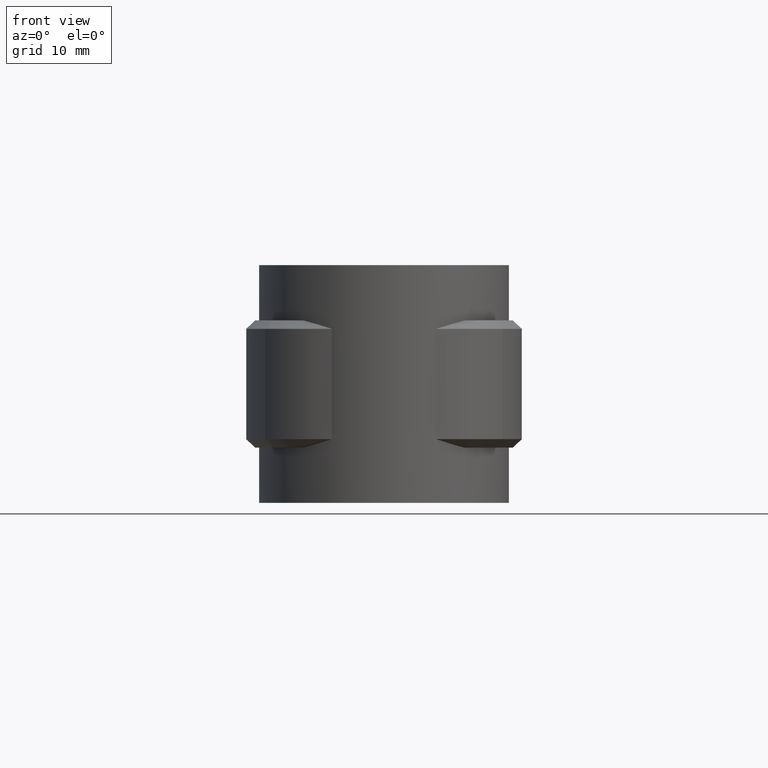
[diagram: clean part render]
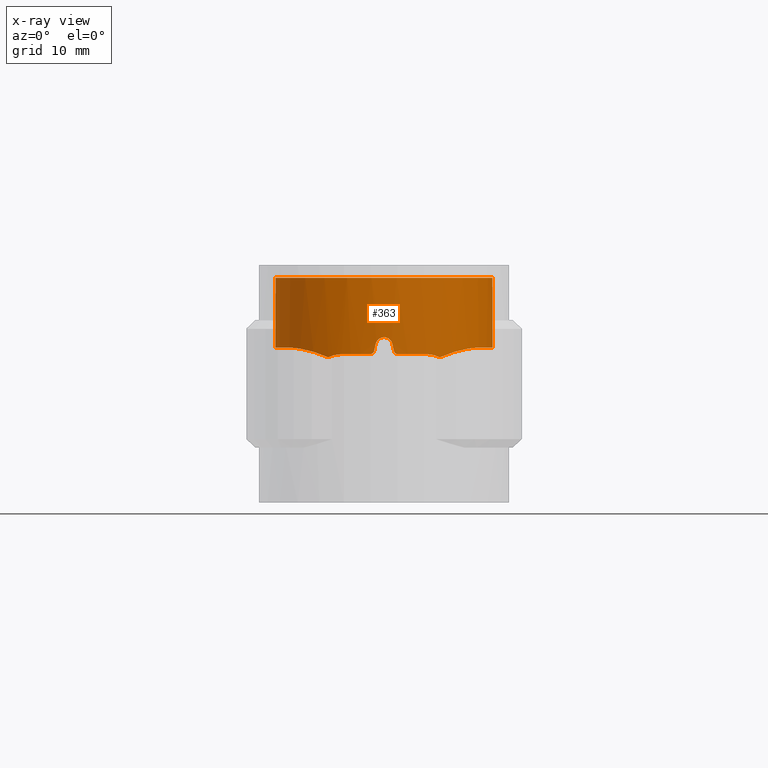
[diagram: x-ray — body ghosted, one internal face saturated and labeled with its STEP entity id]
A machine part, front view, then the same camera in x-ray: the body is ghosted and one INTERNAL B-rep face — a face not visible from any outside direction — is saturated and labeled: STEP entity #363.
In plain terms, the highlighted cylindrical surface (partial cylindrical patch) has radius 12.8 mm, axis along (0, 0, 1).
Its self-contained STEP definition (entity closure, byte-faithful):
#363 = ADVANCED_FACE( '', ( #702 ), #703, .T. );
#702 = FACE_OUTER_BOUND( '', #1430, .T. );
#703 = CYLINDRICAL_SURFACE( '', #1431, 12.8000000000000 );
#1430 = EDGE_LOOP( '', ( #2806, #2807, #2808, #2809, #2810, #2811, #2812, #2813, #2814, #2815, #2816, #2817, #2818, #2819, #2820, #2821 ) );
#1431 = AXIS2_PLACEMENT_3D( '', #2822, #2823, #2824 );
#2806 = ORIENTED_EDGE( '', *, *, #6512, .F. );
#2807 = ORIENTED_EDGE( '', *, *, #6513, .F. );
#2808 = ORIENTED_EDGE( '', *, *, #6514, .F. );
#2809 = ORIENTED_EDGE( '', *, *, #6515, .F. );
#2810 = ORIENTED_EDGE( '', *, *, #6516, .F. );
#2811 = ORIENTED_EDGE( '', *, *, #6517, .T. );
#2812 = ORIENTED_EDGE( '', *, *, #6518, .F. );
#2813 = ORIENTED_EDGE( '', *, *, #6519, .F. );
#2814 = ORIENTED_EDGE( '', *, *, #6520, .F. );
#2815 = ORIENTED_EDGE( '', *, *, #6521, .F. );
#2816 = ORIENTED_EDGE( '', *, *, #6522, .F. );
#2817 = ORIENTED_EDGE( '', *, *, #6523, .F. );
#2818 = ORIENTED_EDGE( '', *, *, #6524, .F. );
#2819 = ORIENTED_EDGE( '', *, *, #6525, .F. );
#2820 = ORIENTED_EDGE( '', *, *, #6526, .F. );
#2821 = ORIENTED_EDGE( '', *, *, #6527, .F. );
#2822 = CARTESIAN_POINT( '', ( 0.000000000000000, 0.000000000000000, 0.000000000000000 ) );
#2823 = DIRECTION( '', ( 0.000000000000000, 0.000000000000000, 1.00000000000000 ) );
#2824 = DIRECTION( '', ( 1.00000000000000, -6.12303176911189E-017, 0.000000000000000 ) );
#6512 = EDGE_CURVE( '', #7422, #7423, #7424, .T. );
#6513 = EDGE_CURVE( '', #7425, #7422, #7426, .T. );
#6514 = EDGE_CURVE( '', #7427, #7425, #7428, .T. );
#6515 = EDGE_CURVE( '', #7429, #7427, #7430, .T. );
#6516 = EDGE_CURVE( '', #7431, #7429, #7432, .F. );
#6517 = EDGE_CURVE( '', #7431, #7433, #7434, .T. );
#6518 = EDGE_CURVE( '', #7435, #7433, #7436, .T. );
#6519 = EDGE_CURVE( '', #7437, #7435, #7438, .T. );
#6520 = EDGE_CURVE( '', #7439, #7437, #7440, .T. );
#6521 = EDGE_CURVE( '', #7441, #7439, #7442, .T. );
#6522 = EDGE_CURVE( '', #7443, #7441, #7444, .T. );
#6523 = EDGE_CURVE( '', #7445, #7443, #7446, .T. );
#6524 = EDGE_CURVE( '', #7447, #7445, #7448, .T. );
#6525 = EDGE_CURVE( '', #7449, #7447, #7450, .T. );
#6526 = EDGE_CURVE( '', #7451, #7449, #7452, .T. );
#6527 = EDGE_CURVE( '', #7423, #7451, #7453, .T. );
#7422 = VERTEX_POINT( '', #8934 );
#7423 = VERTEX_POINT( '', #8935 );
#7424 = B_SPLINE_CURVE_WITH_KNOTS( '', 3, ( #8936, #8937, #8938, #8939, #8940, #8941 ), .UNSPECIFIED., .F., .F., ( 4, 2, 4 ), ( 0.0100804523547221, 0.0109760538606046, 0.0118716553664871 ), .UNSPECIFIED. );
#7425 = VERTEX_POINT( '', #8942 );
#7426 = B_SPLINE_CURVE_WITH_KNOTS( '', 3, ( #8943, #8944, #8945, #8946, #8947, #8948, #8949, #8950, #8951, #8952 ), .UNSPECIFIED., .F., .F., ( 4, 2, 2, 2, 4 ), ( 5.73424926034201E-005, 0.00341288935545768, 0.00425177607117124, 0.00509066278688481, 0.00676843621831193 ), .UNSPECIFIED. );
#7427 = VERTEX_POINT( '', #8953 );
#7428 = B_SPLINE_CURVE_WITH_KNOTS( '', 3, ( #8954, #8955, #8956, #8957, #8958, #8959, #8960, #8961, #8962, #8963, #8964, #8965, #8966, #8967, #8968, #8969, #8970, #8971, #8972, #8973, #8974, #8975, #8976, #8977, #8978, #8979 ), .UNSPECIFIED., .F., .F., ( 4, 2, 2, 2, 2, 2, 2, 2, 2, 2, 2, 2, 4 ), ( 0.000000000000000, 0.00257097322611428, 0.00385645983917143, 0.00514194645222857, 0.00771291967834285, 0.00899840629139999, 0.0102838929044571, 0.0115693795175143, 0.0128548661305714, 0.0154258393566857, 0.0167113259697428, 0.0179968125828000, 0.0205677858089142 ), .UNSPECIFIED. );
#7429 = VERTEX_POINT( '', #8980 );
#7430 = LINE( '', #8981, #8982 );
#7431 = VERTEX_POINT( '', #8983 );
#7432 = CIRCLE( '', #8984, 12.8000000000000 );
#7433 = VERTEX_POINT( '', #8985 );
#7434 = LINE( '', #8986, #8987 );
#7435 = VERTEX_POINT( '', #8988 );
#7436 = B_SPLINE_CURVE_WITH_KNOTS( '', 3, ( #8989, #8990, #8991, #8992, #8993, #8994, #8995, #8996, #8997, #8998, #8999, #9000, #9001, #9002, #9003, #9004, #9005, #9006, #9007, #9008, #9009, #9010 ), .UNSPECIFIED., .F., .F., ( 4, 2, 2, 2, 2, 2, 2, 2, 2, 2, 4 ), ( 0.000127068965293359, 0.00269803150548542, 0.00526899404567747, 0.00783995658586953, 0.00912543785596556, 0.0104109191260616, 0.0116964003961576, 0.0129818816662536, 0.0155528442064457, 0.0181238067466378, 0.0206947692868298 ), .UNSPECIFIED. );
#7437 = VERTEX_POINT( '', #9011 );
#7438 = B_SPLINE_CURVE_WITH_KNOTS( '', 3, ( #9012, #9013, #9014, #9015, #9016, #9017, #9018, #9019, #9020, #9021 ), .UNSPECIFIED., .F., .F., ( 4, 2, 2, 2, 4 ), ( 0.0162190576681450, 0.0178888287702064, 0.0195585998722677, 0.0212283709743291, 0.0228981420763905 ), .UNSPECIFIED. );
#7439 = VERTEX_POINT( '', #9022 );
#7440 = B_SPLINE_CURVE_WITH_KNOTS( '', 3, ( #9023, #9024, #9025, #9026, #9027, #9028 ), .UNSPECIFIED., .F., .F., ( 4, 2, 4 ), ( 3.87895961444886E-018, 0.000898438442944846, 0.00179687688588969 ), .UNSPECIFIED. );
#7441 = VERTEX_POINT( '', #9029 );
#7442 = CIRCLE( '', #9030, 12.8000000000000 );
#7443 = VERTEX_POINT( '', #9031 );
#7444 = B_SPLINE_CURVE_WITH_KNOTS( '', 3, ( #9032, #9033, #9034, #9035, #9036, #9037 ), .UNSPECIFIED., .F., .F., ( 4, 2, 4 ), ( 2.16840434497101E-019, 0.000337038187741902, 0.000674076375483803 ), .UNSPECIFIED. );
#7445 = VERTEX_POINT( '', #9038 );
#7446 = ELLIPSE( '', #9039, 58.3111706028236, 12.8000000000000 );
#7447 = VERTEX_POINT( '', #9040 );
#7448 = B_SPLINE_CURVE_WITH_KNOTS( '', 3, ( #9041, #9042, #9043, #9044, #9045, #9046, #9047, #9048, #9049, #9050 ), .UNSPECIFIED., .F., .F., ( 4, 2, 2, 2, 4 ), ( 9.26342742239755E-019, 0.000671838174335160, 0.00134367634867032, 0.00201551452300548, 0.00268735269734064 ), .UNSPECIFIED. );
#7449 = VERTEX_POINT( '', #9051 );
#7450 = ELLIPSE( '', #9052, 58.3111408569572, 12.8000000000000 );
#7451 = VERTEX_POINT( '', #9053 );
#7452 = B_SPLINE_CURVE_WITH_KNOTS( '', 3, ( #9054, #9055, #9056, #9057, #9058, #9059 ), .UNSPECIFIED., .F., .F., ( 4, 2, 4 ), ( 8.59738825340030E-018, 0.000337014063636943, 0.000674028127273877 ), .UNSPECIFIED. );
#7453 = CIRCLE( '', #9060, 12.8000000000000 );
#8934 = CARTESIAN_POINT( '', ( 6.56473410994214, -10.9883695817788, -9.36924814698073 ) );
#8935 = CARTESIAN_POINT( '', ( 5.00000000000000, -11.7830386573243, -9.00000000000000 ) );
#8936 = CARTESIAN_POINT( '', ( 6.56473410994214, -10.9883695817788, -9.36924814698073 ) );
#8937 = CARTESIAN_POINT( '', ( 6.32850258597897, -11.1295003593399, -9.25118081340004 ) );
#8938 = CARTESIAN_POINT( '', ( 6.07928266777208, -11.2681011832521, -9.15951960330628 ) );
#8939 = CARTESIAN_POINT( '', ( 5.55140795755815, -11.5373156201710, -9.03306913510092 ) );
#8940 = CARTESIAN_POINT( '', ( 5.27929699799209, -11.6645221158300, -8.99999999999997 ) );
#8941 = CARTESIAN_POINT( '', ( 5.00000000000000, -11.7830386573243, -8.99999999999997 ) );
#8942 = CARTESIAN_POINT( '', ( 11.1298594051420, -6.32188497378529, -8.20381026464195 ) );
#8943 = CARTESIAN_POINT( '', ( 11.1298594051420, -6.32188497378536, -8.20381026464197 ) );
#8944 = CARTESIAN_POINT( '', ( 10.5698449572576, -7.30780643481277, -8.22758393088383 ) );
#8945 = CARTESIAN_POINT( '', ( 9.89518376465784, -8.19537042816144, -8.32076699420072 ) );
#8946 = CARTESIAN_POINT( '', ( 8.91828827208210, -9.18594342911976, -8.55196565231141 ) );
#8947 = CARTESIAN_POINT( '', ( 8.71524865747530, -9.37873724867186, -8.60436183474979 ) );
#8948 = CARTESIAN_POINT( '', ( 8.30261482085538, -9.74591497386277, -8.72071908342398 ) );
#8949 = CARTESIAN_POINT( '', ( 8.09253747405275, -9.92089224388458, -8.78475473852539 ) );
#8950 = CARTESIAN_POINT( '', ( 7.45258811959662, -10.4207482003221, -8.99706051446334 ) );
#8951 = CARTESIAN_POINT( '', ( 7.01275633386514, -10.7207096024242, -9.16462653596896 ) );
#8952 = CARTESIAN_POINT( '', ( 6.56473410994213, -10.9883695817788, -9.36924814698074 ) );
#8953 = CARTESIAN_POINT( '', ( 5.85915492957746, 11.3802593780286, -8.20537757863260 ) );
#8954 = CARTESIAN_POINT( '', ( 5.85915492957714, 11.3802593780277, -8.20537757863258 ) );
#8955 = CARTESIAN_POINT( '', ( 6.63034829085314, 10.9832085521826, -8.20642241252662 ) );
#8956 = CARTESIAN_POINT( '', ( 7.34946500581850, 10.5148171961481, -8.20646379754082 ) );
#8957 = CARTESIAN_POINT( '', ( 8.35256105259326, 9.70869342382087, -8.20501831954966 ) );
#8958 = CARTESIAN_POINT( '', ( 8.67423319194235, 9.42259684929827, -8.20436266163419 ) );
#8959 = CARTESIAN_POINT( '', ( 9.29143243037886, 8.81458656116689, -8.20363971373919 ) );
#8960 = CARTESIAN_POINT( '', ( 9.58324699713897, 8.49618829346376, -8.20375624020797 ) );
#8961 = CARTESIAN_POINT( '', ( 10.4038623845806, 7.50566463328627, -8.20451137581379 ) );
#8962 = CARTESIAN_POINT( '', ( 10.8811376573801, 6.79585521542430, -8.20507757548469 ) );
#8963 = CARTESIAN_POINT( '', ( 11.4907528401913, 5.65582004422011, -8.20453755825283 ) );
#8964 = CARTESIAN_POINT( '', ( 11.6763514692566, 5.26192645969674, -8.20419085275088 ) );
#8965 = CARTESIAN_POINT( '', ( 12.0032884276598, 4.46610799503058, -8.20375286776607 ) );
#8966 = CARTESIAN_POINT( '', ( 12.1458355115462, 4.06220312876233, -8.20379652400216 ) );
#8967 = CARTESIAN_POINT( '', ( 12.3898440597422, 3.24261911240532, -8.20437112063391 ) );
#8968 = CARTESIAN_POINT( '', ( 12.4913048829171, 2.82693975440940, -8.20477262753076 ) );
#8969 = CARTESIAN_POINT( '', ( 12.6526425716292, 1.98366378392251, -8.20522618311089 ) );
#8970 = CARTESIAN_POINT( '', ( 12.7126831599918, 1.55384760997180, -8.20527557941966 ) );
#8971 = CARTESIAN_POINT( '', ( 12.8264637265215, 0.262393516766241, -8.20479730990312 ) );
#8972 = CARTESIAN_POINT( '', ( 12.8148807910269, -0.593475520652918, -8.20355305208652 ) );
#8973 = CARTESIAN_POINT( '', ( 12.6699271276014, -1.86983750677162, -8.20402986311720 ) );
#8974 = CARTESIAN_POINT( '', ( 12.6001851941597, -2.29404184192639, -8.20441909907580 ) );
#8975 = CARTESIAN_POINT( '', ( 12.4164613229793, -3.13986992001061, -8.20489585164677 ) );
#8976 = CARTESIAN_POINT( '', ( 12.3031234516611, -3.55777479493444, -8.20497636579706 ) );
#8977 = CARTESIAN_POINT( '', ( 11.9037116249465, -4.78331288786844, -8.20456141077802 ) );
#8978 = CARTESIAN_POINT( '', ( 11.5576405663345, -5.56876395062582, -8.20344498081641 ) );
#8979 = CARTESIAN_POINT( '', ( 11.1298595759335, -6.32188467310196, -8.20381030088705 ) );
#8980 = CARTESIAN_POINT( '', ( 5.85915492957747, 11.3802593780286, 0.000000000000000 ) );
#8981 = CARTESIAN_POINT( '', ( 5.85915492957746, 11.3802593780286, 0.000000000000000 ) );
#8982 = VECTOR( '', #12444, 1000.00000000000 );
#8983 = CARTESIAN_POINT( '', ( -5.85915492957747, 11.3802593780286, 0.000000000000000 ) );
#8984 = AXIS2_PLACEMENT_3D( '', #12445, #12446, #12447 );
#8985 = CARTESIAN_POINT( '', ( -5.85915492957747, 11.3802593780286, -8.20537757863258 ) );
#8986 = CARTESIAN_POINT( '', ( -5.85915492957747, 11.3802593780286, 0.000000000000000 ) );
#8987 = VECTOR( '', #12448, 1000.00000000000 );
#8988 = CARTESIAN_POINT( '', ( -11.1298593950862, -6.32188479454470, -8.20381016150056 ) );
#8989 = CARTESIAN_POINT( '', ( -11.1298594602778, -6.32188487671711, -8.20381030098582 ) );
#8990 = CARTESIAN_POINT( '', ( -11.5576164390714, -5.56880645944641, -8.20344502118881 ) );
#8991 = CARTESIAN_POINT( '', ( -11.9034420391664, -4.78380917601762, -8.20456032620361 ) );
#8992 = CARTESIAN_POINT( '', ( -12.4355833979480, -3.15167069425463, -8.20511478351596 ) );
#8993 = CARTESIAN_POINT( '', ( -12.6212818875243, -2.29730381893986, -8.20419071132190 ) );
#8994 = CARTESIAN_POINT( '', ( -12.8148772730139, -0.594375132771147, -8.20355223068414 ) );
#8995 = CARTESIAN_POINT( '', ( -12.8264041776283, 0.261181322844776, -8.20479546955430 ) );
#8996 = CARTESIAN_POINT( '', ( -12.7130356491124, 1.55078674782155, -8.20527513863025 ) );
#8997 = CARTESIAN_POINT( '', ( -12.6529908827435, 1.98153126904681, -8.20522690226906 ) );
#8998 = CARTESIAN_POINT( '', ( -12.4916113142000, 2.82564881468849, -8.20477374794485 ) );
#8999 = CARTESIAN_POINT( '', ( -12.3901303055394, 3.24152209625478, -8.20437212473782 ) );
#9000 = CARTESIAN_POINT( '', ( -12.1462091839285, 4.06108322359992, -8.20379707477978 ) );
#9001 = CARTESIAN_POINT( '', ( -12.0037690705048, 4.46477109143920, -8.20375257410262 ) );
#9002 = CARTESIAN_POINT( '', ( -11.6773035492270, 5.25977514882245, -8.20418922858226 ) );
#9003 = CARTESIAN_POINT( '', ( -11.4920310624530, 5.65326654086347, -8.20453586591500 ) );
#9004 = CARTESIAN_POINT( '', ( -10.8817998164363, 6.79494185734747, -8.20507810459543 ) );
#9005 = CARTESIAN_POINT( '', ( -10.4043414951223, 7.50492999703134, -8.20451236987533 ) );
#9006 = CARTESIAN_POINT( '', ( -9.31112843827810, 8.82480500710092, -8.20350528272358 ) );
#9007 = CARTESIAN_POINT( '', ( -8.68858286913233, 9.43854086975146, -8.20453342827823 ) );
#9008 = CARTESIAN_POINT( '', ( -7.34986138584198, 10.5146119107011, -8.20646390358822 ) );
#9009 = CARTESIAN_POINT( '', ( -6.63034680211847, 10.9832093186624, -8.20642241051216 ) );
#9010 = CARTESIAN_POINT( '', ( -5.85915492957783, 11.3802593780284, -8.20537757863509 ) );
#9011 = CARTESIAN_POINT( '', ( -6.56473410994220, -10.9883695817788, -9.36924814698071 ) );
#9012 = CARTESIAN_POINT( '', ( -6.56473410994205, -10.9883695817789, -9.36924814698077 ) );
#9013 = CARTESIAN_POINT( '', ( -7.01289716773639, -10.7206254646537, -9.16456221404008 ) );
#9014 = CARTESIAN_POINT( '', ( -7.46140481983093, -10.4144421594793, -8.99383399640903 ) );
#9015 = CARTESIAN_POINT( '', ( -8.31425361035401, -9.74712030710877, -8.71150720969559 ) );
#9016 = CARTESIAN_POINT( '', ( -8.72220163475672, -9.38439682861721, -8.59849948303978 ) );
#9017 = CARTESIAN_POINT( '', ( -9.49650671525607, -8.60000380240671, -8.41499534132819 ) );
#9018 = CARTESIAN_POINT( '', ( -9.86515453171949, -8.17514012540906, -8.34486689624011 ) );
#9019 = CARTESIAN_POINT( '', ( -10.5420177883089, -7.28148686435390, -8.24550886215225 ) );
#9020 = CARTESIAN_POINT( '', ( -10.8510165517773, -6.81279579686221, -8.21564766822763 ) );
#9021 = CARTESIAN_POINT( '', ( -11.1298594067179, -6.32188497101080, -8.20381026457504 ) );
#9022 = CARTESIAN_POINT( '', ( -5.00000000000005, -11.7830386573243, -9.00000000000000 ) );
#9023 = CARTESIAN_POINT( '', ( -5.00000000000005, -11.7830386573243, -8.99999999999997 ) );
#9024 = CARTESIAN_POINT( '', ( -5.27992698381585, -11.6642547884274, -8.99999999999997 ) );
#9025 = CARTESIAN_POINT( '', ( -5.54999572345530, -11.5379179163762, -9.03306233183146 ) );
#9026 = CARTESIAN_POINT( '', ( -6.07258677995981, -11.2716321877208, -9.15758923974917 ) );
#9027 = CARTESIAN_POINT( '', ( -6.32748523740796, -11.1301081494962, -9.25067234767498 ) );
#9028 = CARTESIAN_POINT( '', ( -6.56473410994220, -10.9883695817788, -9.36924814698071 ) );
#9029 = CARTESIAN_POINT( '', ( -1.65000000000003, -12.6932068446079, -9.00000000000000 ) );
#9030 = AXIS2_PLACEMENT_3D( '', #12449, #12450, #12451 );
#9031 = CARTESIAN_POINT( '', ( -1.16219512100914, -12.7471291866327, -8.60975609337372 ) );
#9032 = CARTESIAN_POINT( '', ( -1.16219512100915, -12.7471291866327, -8.60975609337372 ) );
#9033 = CARTESIAN_POINT( '', ( -1.18720731454927, -12.7448487477297, -8.72092140245212 ) );
#9034 = CARTESIAN_POINT( '', ( -1.24953636223476, -12.7391766293208, -8.82017382395212 ) );
#9035 = CARTESIAN_POINT( '', ( -1.42702185249820, -12.7205177153319, -8.96169594805776 ) );
#9036 = CARTESIAN_POINT( '', ( -1.53700502994728, -12.7078951501613, -8.99999999999994 ) );
#9037 = CARTESIAN_POINT( '', ( -1.65000000000003, -12.6932068446079, -8.99999999999994 ) );
#9038 = CARTESIAN_POINT( '', ( -0.975610000000027, -12.7627655752153, -7.78048800000004 ) );
#9039 = AXIS2_PLACEMENT_3D( '', #12452, #12453, #12454 );
#9040 = CARTESIAN_POINT( '', ( 0.975609757981813, -12.7627655937156, -7.78048781325256 ) );
#9041 = CARTESIAN_POINT( '', ( 0.975609757981815, -12.7627655937156, -7.78048781325256 ) );
#9042 = CARTESIAN_POINT( '', ( 0.925748313023725, -12.7665770961592, -7.55888148137083 ) );
#9043 = CARTESIAN_POINT( '', ( 0.801985689139066, -12.7760834575001, -7.36098205725305 ) );
#9044 = CARTESIAN_POINT( '', ( 0.447502724388243, -12.7934057572742, -7.07735906719472 ) );
#9045 = CARTESIAN_POINT( '', ( 0.227174632041959, -12.8000000457783, -6.99999943332110 ) );
#9046 = CARTESIAN_POINT( '', ( -0.227179790712665, -12.7999999542211, -7.00000055981794 ) );
#9047 = CARTESIAN_POINT( '', ( -0.447617636699398, -12.7934008911052, -7.07743085044601 ) );
#9048 = CARTESIAN_POINT( '', ( -0.801978652198589, -12.7760830519621, -7.36099627146667 ) );
#9049 = CARTESIAN_POINT( '', ( -0.925748561357893, -12.7665770781272, -7.55888149811585 ) );
#9050 = CARTESIAN_POINT( '', ( -0.975610000000027, -12.7627655752153, -7.78048800000004 ) );
#9051 = CARTESIAN_POINT( '', ( 1.16219499999999, -12.7471291976655, -8.60975599999998 ) );
#9052 = AXIS2_PLACEMENT_3D( '', #12455, #12456, #12457 );
#9053 = CARTESIAN_POINT( '', ( 1.64999999999995, -12.6932068446079, -9.00000000000000 ) );
#9054 = CARTESIAN_POINT( '', ( 1.64999999999995, -12.6932068446079, -8.99999999999994 ) );
#9055 = CARTESIAN_POINT( '', ( 1.53700493924136, -12.7078951619523, -9.00000000048491 ) );
#9056 = CARTESIAN_POINT( '', ( 1.42701853239918, -12.7205179855020, -8.96168915243458 ) );
#9057 = CARTESIAN_POINT( '', ( 1.24956206434769, -12.7391740061369, -8.82019853752776 ) );
#9058 = CARTESIAN_POINT( '', ( 1.18720723034484, -12.7448487556463, -8.72092147042719 ) );
#9059 = CARTESIAN_POINT( '', ( 1.16219499999999, -12.7471291976654, -8.60975599999998 ) );
#9060 = AXIS2_PLACEMENT_3D( '', #12458, #12459, #12460 );
#12444 = DIRECTION( '', ( 0.000000000000000, 0.000000000000000, -1.00000000000000 ) );
#12445 = CARTESIAN_POINT( '', ( 0.000000000000000, 0.000000000000000, 0.000000000000000 ) );
#12446 = DIRECTION( '', ( 0.000000000000000, 0.000000000000000, -1.00000000000000 ) );
#12447 = DIRECTION( '', ( -1.00000000000000, 0.000000000000000, 0.000000000000000 ) );
#12448 = DIRECTION( '', ( 0.000000000000000, 0.000000000000000, -1.00000000000000 ) );
#12449 = CARTESIAN_POINT( '', ( 0.000000000000000, 0.000000000000000, -9.00000000000000 ) );
#12450 = DIRECTION( '', ( 6.12303176911189E-017, -1.56572574765720E-016, -1.00000000000000 ) );
#12451 = DIRECTION( '', ( 0.000000000000000, 1.00000000000000, -1.56572574765720E-016 ) );
#12452 = CARTESIAN_POINT( '', ( 0.000000000000000, 0.000000000000000, -3.44443890776446 ) );
#12453 = DIRECTION( '', ( 0.975609806487711, 1.65590917266197E-017, -0.219511971165610 ) );
#12454 = DIRECTION( '', ( -0.219511971165610, -3.72579164482623E-018, -0.975609806487711 ) );
#12455 = CARTESIAN_POINT( '', ( 0.000000000000000, 0.000000000000000, -3.44444212055030 ) );
#12456 = DIRECTION( '', ( -0.975609781292647, -8.52982169786940E-017, -0.219512083143762 ) );
#12457 = DIRECTION( '', ( 0.219512083143762, 1.91920885342428E-017, -0.975609781292647 ) );
#12458 = CARTESIAN_POINT( '', ( 0.000000000000000, 0.000000000000000, -9.00000000000000 ) );
#12459 = DIRECTION( '', ( 6.12303176911189E-017, -1.56572574765720E-016, -1.00000000000000 ) );
#12460 = DIRECTION( '', ( 0.000000000000000, 1.00000000000000, -1.56572574765720E-016 ) );